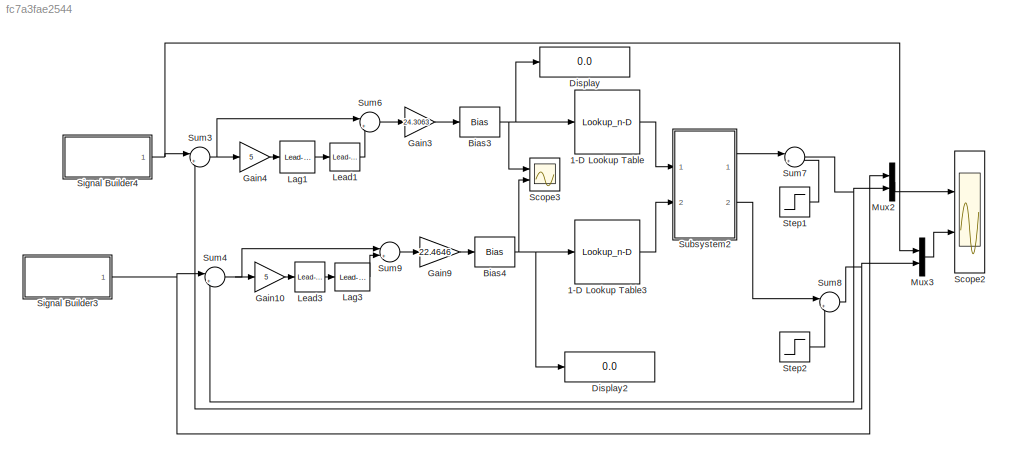
MODEL slx_fc7a3fae2544
KIND model
CONFIG AbsTol = auto
CONFIG FixedStep = auto
CONFIG MaxStep = auto
CONFIG MinStep = auto
CONFIG RelTol = 1e-3
CONFIG SampleTimeConstraint = Unconstrained
CONFIG Solver = ode45
CONFIG SolverMode = Auto
CONFIG SolverName = ode45
CONFIG StartTime = 0.0
CONFIG StopTime = 3999
BLOCK [Lookup_n-D] 1-D Lookup Table
  BreakpointsForDimension1 = [163.87 211.67  227.76 244.4 261.62 274.69 289.41 301.46 318.94 330.75 334.66]
  InternalRulePriority = Speed
  NumberOfTableDimensions = 1
  Ports = [1, 1]
  RndMeth = Simplest
  Table = [21 22 23 24 25 26 27 28 29 30 31]
BLOCK [Lookup_n-D] 1-D Lookup Table3
  BreakpointsForDimension1 = [ 178.15 234.55 279.97 322.51 357.16 393.93 415.2 473.02 487.03 513.69 555.26 570.95 598.52]
  InternalRulePriority = Speed
  NumberOfTableDimensions = 1
  Ports = [1, 1]
  RndMeth = Simplest
  Table = [ 18 19 20 21 22 23 24 25 26 27 28 29 30]
BLOCK [Bias] Bias3
  Bias = 100
  SaturateOnIntegerOverflow = off
BLOCK [Bias] Bias4
  Bias = 200
  SaturateOnIntegerOverflow = off
BLOCK [Display] Display
  Decimation = 1
  Ports = [1]
BLOCK [Display] Display2
  Decimation = 1
  Ports = [1]
BLOCK [Gain] Gain10
  Gain = 5
  OutDataTypeStr = Inherit: Inherit via internal rule
  ParamDataTypeStr = Inherit: Inherit via internal rule
  SaturateOnIntegerOverflow = off
BLOCK [Gain] Gain3
  Gain = 24.3063
  OutDataTypeStr = Inherit: Inherit via internal rule
  ParamDataTypeStr = Inherit: Inherit via internal rule
  SaturateOnIntegerOverflow = off
BLOCK [Gain] Gain4
  Gain = 5
  OutDataTypeStr = Inherit: Inherit via internal rule
  ParamDataTypeStr = Inherit: Inherit via internal rule
  SaturateOnIntegerOverflow = off
BLOCK [Gain] Gain9
  Gain = 22.4646
  OutDataTypeStr = Inherit: Inherit via internal rule
  ParamDataTypeStr = Inherit: Inherit via internal rule
  SaturateOnIntegerOverflow = off
BLOCK [Reference] Lag1  REF=powerlib_meascontrol/Filters/Lead-Lag
Filter
  Ports = [1, 1]
  SourceBlock = powerlib_meascontrol/Filters/Lead-Lag\nFilter
  SourceType = Lead-Lag Filter
  T1 = 1/0.001
  T2 = 1/0.0002
  Ts = 0
  Vdc_Init = 0
BLOCK [Reference] Lag3  REF=powerlib_meascontrol/Filters/Lead-Lag
Filter
  Ports = [1, 1]
  SourceBlock = powerlib_meascontrol/Filters/Lead-Lag\nFilter
  SourceType = Lead-Lag Filter
  T1 = 1/0.001
  T2 = 1/0.0002
  Ts = 0
  Vdc_Init = 0
BLOCK [Reference] Lead1  REF=powerlib_meascontrol/Filters/Lead-Lag
Filter
  Ports = [1, 1]
  SourceBlock = powerlib_meascontrol/Filters/Lead-Lag\nFilter
  SourceType = Lead-Lag Filter
  T1 = 13/25
  T2 = 0.052
  Ts = 0
  Vdc_Init = 0
BLOCK [Reference] Lead3  REF=powerlib_meascontrol/Filters/Lead-Lag
Filter
  Ports = [1, 1]
  SourceBlock = powerlib_meascontrol/Filters/Lead-Lag\nFilter
  SourceType = Lead-Lag Filter
  T1 = 13/25
  T2 = 0.052
  Ts = 0
  Vdc_Init = 0
BLOCK [Mux] Mux2
  DisplayOption = bar
  Inputs = 2
  Ports = [2, 1]
BLOCK [Mux] Mux3
  DisplayOption = bar
  Inputs = 2
  Ports = [2, 1]
BLOCK [Scope] Scope2
  Floating = off
  LimitDataPoints = off
  NumInputPorts = 2
  Ports = [2]
  SaveName = ScopeData5
  TimeRange = 3999
  YMax = 51.36666666666667~45.3240740740741
  YMin = 41.76666666666668~45.27074074074077
  ZoomMode = yonly
BLOCK [Scope] Scope3
  Floating = off
  NumInputPorts = 2
  Ports = [2]
  SaveName = ScopeData6
  YMax = 300~400
  YMin = -100~50
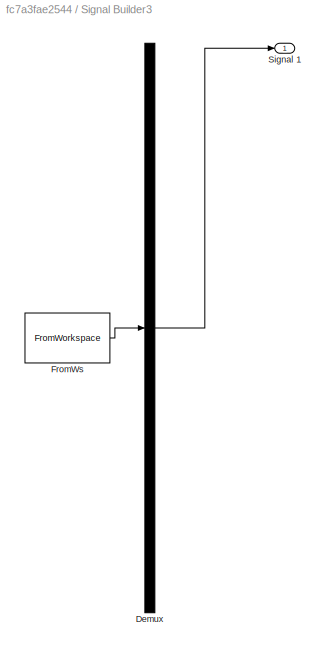
BLOCK [SubSystem] Signal Builder3
  ClipboardFcn = sigbuilder_block('clipboard');
  CloseFcn = sigbuilder_block('close');
  ContinueFcn = sigbuilder_block('continue');
  CopyFcn = sigbuilder_block('copy');
  DeleteFcn = sigbuilder_block('delete');
  LoadFcn = sigbuilder_block('load');
  MaskHideContents = on
  ModelCloseFcn = sigbuilder_block('modelClose');
  NameChangeFcn = sigbuilder_block('namechange');
  OpenFcn = sigbuilder_block('open',[6 28.5 1011.75 484.5 ]);
  PauseFcn = sigbuilder_block('pause');
  Ports = [0, 1]
  PreSaveFcn = sigbuilder_block('preSave');
  RequestExecContextInheritance = off
  StartFcn = sigbuilder_block('start');
  StopFcn = sigbuilder_block('stop');
  Tag = STV Subsys
BLOCK [Demux] Signal Builder3/Demux
  Outputs = 1
  Ports = [1, 1]
  Tag = STV Demux
BLOCK [FromWorkspace] Signal Builder3/FromWs
  SampleTime = 0
  Tag = STV FromWs
  VariableName = tuvar
  ZeroCross = on
BLOCK [Outport] Signal Builder3/Signal 1
  IconDisplay = Port number
  Tag = STV Outport
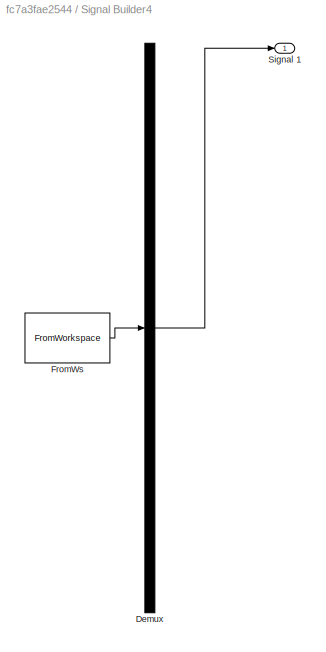
BLOCK [SubSystem] Signal Builder4
  ClipboardFcn = sigbuilder_block('clipboard');
  CloseFcn = sigbuilder_block('close');
  ContinueFcn = sigbuilder_block('continue');
  CopyFcn = sigbuilder_block('copy');
  DeleteFcn = sigbuilder_block('delete');
  LoadFcn = sigbuilder_block('load');
  MaskHideContents = on
  ModelCloseFcn = sigbuilder_block('modelClose');
  NameChangeFcn = sigbuilder_block('namechange');
  OpenFcn = sigbuilder_block('open',[6 28.5 1011.75 484.5 ]);
  PauseFcn = sigbuilder_block('pause');
  Ports = [0, 1]
  PreSaveFcn = sigbuilder_block('preSave');
  RequestExecContextInheritance = off
  StartFcn = sigbuilder_block('start');
  StopFcn = sigbuilder_block('stop');
  Tag = STV Subsys
BLOCK [Demux] Signal Builder4/Demux
  Outputs = 1
  Ports = [1, 1]
  Tag = STV Demux
BLOCK [FromWorkspace] Signal Builder4/FromWs
  SampleTime = 0
  Tag = STV FromWs
  VariableName = tuvar
  ZeroCross = on
BLOCK [Outport] Signal Builder4/Signal 1
  IconDisplay = Port number
  Tag = STV Outport
BLOCK [Step] Step1
  SampleTime = 0
  Time = 2000
BLOCK [Step] Step2
  SampleTime = 0
  Time = 2000
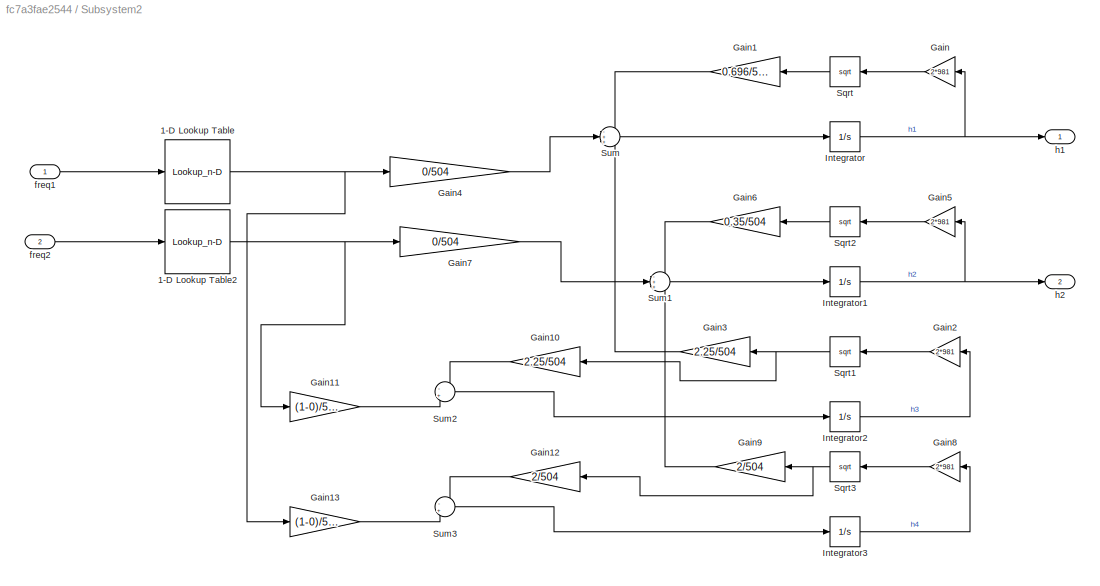
BLOCK [SubSystem] Subsystem2
  Ports = [2, 2]
  RequestExecContextInheritance = off
BLOCK [Lookup_n-D] Subsystem2/1-D Lookup Table
  BreakpointsForDimension1 = [21 22 23 24 25 26 27 28 29 30 31]
  InternalRulePriority = Speed
  NumberOfTableDimensions = 1
  Ports = [1, 1]
  RndMeth = Simplest
  Table = [163.87 211.67  227.76 244.4 261.62 274.69 289.41 301.46 318.94 330.75 334.66]
BLOCK [Lookup_n-D] Subsystem2/1-D Lookup Table2
  BreakpointsForDimension1 = [18 19 20 21 22 23 24 25 26 27 28 29 30]
  InternalRulePriority = Speed
  NumberOfTableDimensions = 1
  Ports = [1, 1]
  RndMeth = Simplest
  Table = [ 178.15 234.55 279.97 322.51 357.16 393.93 415.2 473.02 487.03 513.69 555.26 570.95 598.52]
BLOCK [Gain] Subsystem2/Gain
  Gain = 2*981
  OutDataTypeStr = Inherit: Inherit via internal rule
  ParamDataTypeStr = Inherit: Inherit via internal rule
  SaturateOnIntegerOverflow = off
BLOCK [Gain] Subsystem2/Gain1
  Gain = 0.696/504
  OutDataTypeStr = Inherit: Inherit via internal rule
  ParamDataTypeStr = Inherit: Inherit via internal rule
  SaturateOnIntegerOverflow = off
BLOCK [Gain] Subsystem2/Gain10
  Gain = 2.25/504
  OutDataTypeStr = Inherit: Inherit via internal rule
  ParamDataTypeStr = Inherit: Inherit via internal rule
  SaturateOnIntegerOverflow = off
BLOCK [Gain] Subsystem2/Gain11
  Gain = (1-0)/504
  OutDataTypeStr = Inherit: Inherit via internal rule
  ParamDataTypeStr = Inherit: Inherit via internal rule
  SaturateOnIntegerOverflow = off
BLOCK [Gain] Subsystem2/Gain12
  Gain = 2/504
  OutDataTypeStr = Inherit: Inherit via internal rule
  ParamDataTypeStr = Inherit: Inherit via internal rule
  SaturateOnIntegerOverflow = off
BLOCK [Gain] Subsystem2/Gain13
  Gain = (1-0)/504
  OutDataTypeStr = Inherit: Inherit via internal rule
  ParamDataTypeStr = Inherit: Inherit via internal rule
  SaturateOnIntegerOverflow = off
BLOCK [Gain] Subsystem2/Gain2
  Gain = 2*981
  OutDataTypeStr = Inherit: Inherit via internal rule
  ParamDataTypeStr = Inherit: Inherit via internal rule
  SaturateOnIntegerOverflow = off
BLOCK [Gain] Subsystem2/Gain3
  Gain = 2.25/504
  OutDataTypeStr = Inherit: Inherit via internal rule
  ParamDataTypeStr = Inherit: Inherit via internal rule
  SaturateOnIntegerOverflow = off
BLOCK [Gain] Subsystem2/Gain4
  Gain = 0/504
  OutDataTypeStr = Inherit: Inherit via internal rule
  ParamDataTypeStr = Inherit: Inherit via internal rule
  SaturateOnIntegerOverflow = off
BLOCK [Gain] Subsystem2/Gain5
  Gain = 2*981
  OutDataTypeStr = Inherit: Inherit via internal rule
  ParamDataTypeStr = Inherit: Inherit via internal rule
  SaturateOnIntegerOverflow = off
BLOCK [Gain] Subsystem2/Gain6
  Gain = 0.35/504
  OutDataTypeStr = Inherit: Inherit via internal rule
  ParamDataTypeStr = Inherit: Inherit via internal rule
  SaturateOnIntegerOverflow = off
BLOCK [Gain] Subsystem2/Gain7
  Gain = 0/504
  OutDataTypeStr = Inherit: Inherit via internal rule
  ParamDataTypeStr = Inherit: Inherit via internal rule
  SaturateOnIntegerOverflow = off
BLOCK [Gain] Subsystem2/Gain8
  Gain = 2*981
  OutDataTypeStr = Inherit: Inherit via internal rule
  ParamDataTypeStr = Inherit: Inherit via internal rule
  SaturateOnIntegerOverflow = off
BLOCK [Gain] Subsystem2/Gain9
  Gain = 2/504
  OutDataTypeStr = Inherit: Inherit via internal rule
  ParamDataTypeStr = Inherit: Inherit via internal rule
  SaturateOnIntegerOverflow = off
BLOCK [Integrator] Subsystem2/Integrator
  LimitOutput = on
  LowerSaturationLimit = 0
  Ports = [1, 1]
BLOCK [Integrator] Subsystem2/Integrator1
  LimitOutput = on
  LowerSaturationLimit = 0
  Ports = [1, 1]
BLOCK [Integrator] Subsystem2/Integrator2
  LimitOutput = on
  LowerSaturationLimit = 0
  Ports = [1, 1]
BLOCK [Integrator] Subsystem2/Integrator3
  LimitOutput = on
  LowerSaturationLimit = 0
  Ports = [1, 1]
BLOCK [Sqrt] Subsystem2/Sqrt
BLOCK [Sqrt] Subsystem2/Sqrt1
BLOCK [Sqrt] Subsystem2/Sqrt2
BLOCK [Sqrt] Subsystem2/Sqrt3
BLOCK [Sum] Subsystem2/Sum
  IconShape = round
  InputSameDT = off
  Inputs = -++
  OutDataTypeStr = Inherit: Inherit via internal rule
  Ports = [3, 1]
  SaturateOnIntegerOverflow = off
BLOCK [Sum] Subsystem2/Sum1
  IconShape = round
  InputSameDT = off
  Inputs = -++
  OutDataTypeStr = Inherit: Inherit via internal rule
  Ports = [3, 1]
  SaturateOnIntegerOverflow = off
BLOCK [Sum] Subsystem2/Sum2
  IconShape = round
  InputSameDT = off
  Inputs = -+
  OutDataTypeStr = Inherit: Inherit via internal rule
  Ports = [2, 1]
  SaturateOnIntegerOverflow = off
BLOCK [Sum] Subsystem2/Sum3
  IconShape = round
  InputSameDT = off
  Inputs = -+
  OutDataTypeStr = Inherit: Inherit via internal rule
  Ports = [2, 1]
  SaturateOnIntegerOverflow = off
BLOCK [Inport] Subsystem2/freq1
  IconDisplay = Port number
BLOCK [Inport] Subsystem2/freq2
  IconDisplay = Port number
  Port = 2
BLOCK [Outport] Subsystem2/h1
  IconDisplay = Port number
BLOCK [Outport] Subsystem2/h2
  IconDisplay = Port number
  Port = 2
BLOCK [Sum] Sum3
  IconShape = round
  InputSameDT = off
  Inputs = |+-
  OutDataTypeStr = Inherit: Inherit via internal rule
  Ports = [2, 1]
  SaturateOnIntegerOverflow = off
BLOCK [Sum] Sum4
  IconShape = round
  InputSameDT = off
  Inputs = |+-
  OutDataTypeStr = Inherit: Inherit via internal rule
  Ports = [2, 1]
  SaturateOnIntegerOverflow = off
BLOCK [Sum] Sum6
  IconShape = round
  InputSameDT = off
  Inputs = |++
  OutDataTypeStr = Inherit: Inherit via internal rule
  Ports = [2, 1]
  SaturateOnIntegerOverflow = off
BLOCK [Sum] Sum7
  IconShape = round
  InputSameDT = off
  Inputs = |++
  OutDataTypeStr = Inherit: Inherit via internal rule
  Ports = [2, 1]
  SaturateOnIntegerOverflow = off
BLOCK [Sum] Sum8
  IconShape = round
  InputSameDT = off
  Inputs = |++
  OutDataTypeStr = Inherit: Inherit via internal rule
  Ports = [2, 1]
  SaturateOnIntegerOverflow = off
BLOCK [Sum] Sum9
  IconShape = round
  InputSameDT = off
  Inputs = |++
  OutDataTypeStr = Inherit: Inherit via internal rule
  Ports = [2, 1]
  SaturateOnIntegerOverflow = off
LINE 1-D Lookup Table3:1 -> Subsystem2:2
LINE 1-D Lookup Table:1 -> Subsystem2:1
NET Bias3:1 -> 1-D Lookup Table:1, Display:1, Scope3:1
NET Bias4:1 -> 1-D Lookup Table3:1, Display2:1, Scope3:2
LINE Gain10:1 -> Lead3:1
LINE Gain3:1 -> Bias3:1
LINE Gain4:1 -> Lag1:1
LINE Gain9:1 -> Bias4:1
LINE Lag1:1 -> Lead1:1
LINE Lag3:1 -> Sum9:2
LINE Lead1:1 -> Sum6:2
LINE Lead3:1 -> Lag3:1
LINE Mux2:1 -> Scope2:1
LINE Mux3:1 -> Scope2:2
NET Signal Builder3:1 -> Mux2:1, Sum4:1
NET Signal Builder4:1 -> Mux3:1, Sum3:1
LINE Step1:1 -> Sum7:2
LINE Step2:1 -> Sum8:2
NET Subsystem2/1-D Lookup Table2:1 -> Subsystem2/Gain11:1, Subsystem2/Gain7:1
NET Subsystem2/1-D Lookup Table:1 -> Subsystem2/Gain13:1, Subsystem2/Gain4:1
LINE Subsystem2/Gain10:1 -> Subsystem2/Sum2:1
LINE Subsystem2/Gain11:1 -> Subsystem2/Sum2:2
LINE Subsystem2/Gain12:1 -> Subsystem2/Sum3:1
LINE Subsystem2/Gain13:1 -> Subsystem2/Sum3:2
LINE Subsystem2/Gain1:1 -> Subsystem2/Sum:1
LINE Subsystem2/Gain2:1 -> Subsystem2/Sqrt1:1
LINE Subsystem2/Gain3:1 -> Subsystem2/Sum:3
LINE Subsystem2/Gain4:1 -> Subsystem2/Sum:2
LINE Subsystem2/Gain5:1 -> Subsystem2/Sqrt2:1
LINE Subsystem2/Gain6:1 -> Subsystem2/Sum1:1
LINE Subsystem2/Gain7:1 -> Subsystem2/Sum1:2
LINE Subsystem2/Gain8:1 -> Subsystem2/Sqrt3:1
LINE Subsystem2/Gain9:1 -> Subsystem2/Sum1:3
LINE Subsystem2/Gain:1 -> Subsystem2/Sqrt:1
NET Subsystem2/Integrator1:1 -> Subsystem2/Gain5:1, Subsystem2/h2:1
LINE Subsystem2/Integrator2:1 -> Subsystem2/Gain2:1
LINE Subsystem2/Integrator3:1 -> Subsystem2/Gain8:1
NET Subsystem2/Integrator:1 -> Subsystem2/Gain:1, Subsystem2/h1:1
NET Subsystem2/Sqrt1:1 -> Subsystem2/Gain10:1, Subsystem2/Gain3:1
LINE Subsystem2/Sqrt2:1 -> Subsystem2/Gain6:1
NET Subsystem2/Sqrt3:1 -> Subsystem2/Gain12:1, Subsystem2/Gain9:1
LINE Subsystem2/Sqrt:1 -> Subsystem2/Gain1:1
LINE Subsystem2/Sum1:1 -> Subsystem2/Integrator1:1
LINE Subsystem2/Sum2:1 -> Subsystem2/Integrator2:1
LINE Subsystem2/Sum3:1 -> Subsystem2/Integrator3:1
LINE Subsystem2/Sum:1 -> Subsystem2/Integrator:1
LINE Subsystem2/freq1:1 -> Subsystem2/1-D Lookup Table:1
LINE Subsystem2/freq2:1 -> Subsystem2/1-D Lookup Table2:1
LINE Subsystem2:1 -> Sum7:1
LINE Subsystem2:2 -> Sum8:1
NET Sum3:1 -> Gain4:1, Sum6:1
NET Sum4:1 -> Gain10:1, Sum9:1
LINE Sum6:1 -> Gain3:1
NET Sum7:1 -> Mux2:2, Sum4:2
NET Sum8:1 -> Mux3:2, Sum3:2
LINE Sum9:1 -> Gain9:1
note: NET lines group one-source signal fan-out (src -> all destinations, sorted); 1:1 wires keep LINE
